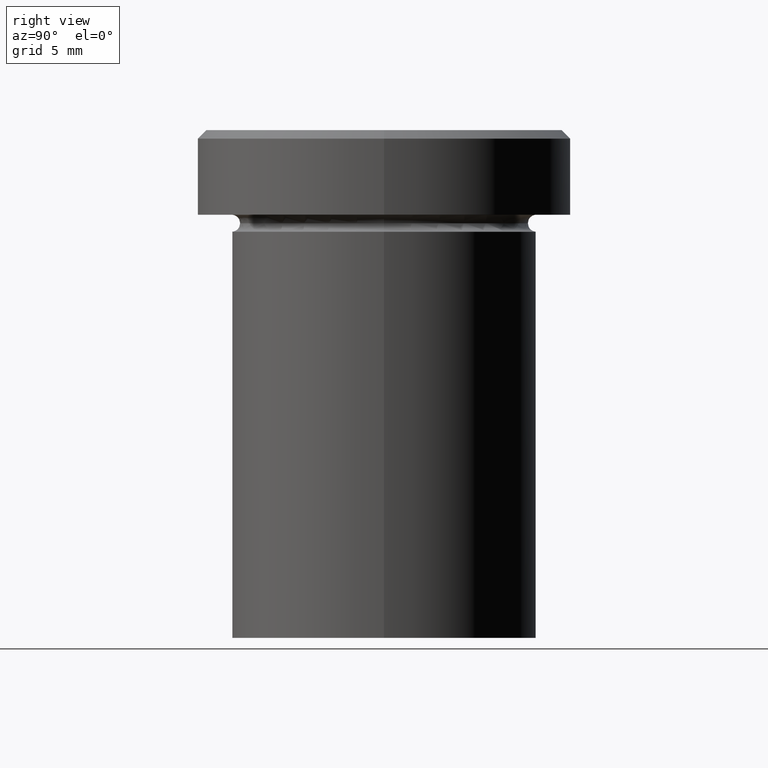
[diagram: clean part render]
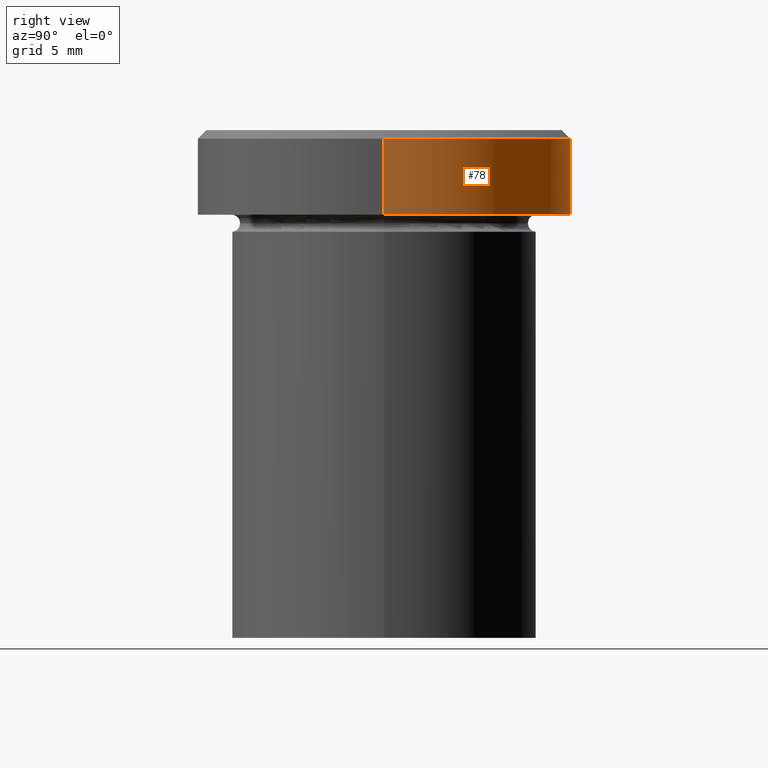
[diagram: same view with one face highlighted and labeled with its STEP entity id]
A machine part, right view. The second image highlights one B-rep face of the part: STEP entity #78.
In plain terms, the highlighted cylindrical surface (partial cylindrical patch) has radius 11 mm, axis along (-0, -0, 1).
Its self-contained STEP definition (entity closure, byte-faithful):
#15 = AXIS2_PLACEMENT_3D ( 'NONE', #238, #233, #207 ) ;
#23 = ORIENTED_EDGE ( 'NONE', *, *, #318, .T. ) ;
#52 = DIRECTION ( 'NONE',  ( -0.000000000000000000, -0.000000000000000000, 1.000000000000000000 ) ) ;
#70 = VERTEX_POINT ( 'NONE', #253 ) ;
#76 = CARTESIAN_POINT ( 'NONE',  ( -11.00000000000000000, 1.347111479062088405E-15, -0.5000000000000004441 ) ) ;
#78 = ADVANCED_FACE ( 'NONE', ( #383 ), #295, .T. ) ;
#102 = CIRCLE ( 'NONE', #341, 11.00000000000000000 ) ;
#110 = CIRCLE ( 'NONE', #15, 11.00000000000000000 ) ;
#119 = ORIENTED_EDGE ( 'NONE', *, *, #194, .T. ) ;
#132 = DIRECTION ( 'NONE',  ( -0.000000000000000000, -0.000000000000000000, 1.000000000000000000 ) ) ;
#136 = EDGE_LOOP ( 'NONE', ( #119, #141, #23, #138 ) ) ;
#138 = ORIENTED_EDGE ( 'NONE', *, *, #409, .F. ) ;
#141 = ORIENTED_EDGE ( 'NONE', *, *, #202, .T. ) ;
#145 = CARTESIAN_POINT ( 'NONE',  ( 11.00000000000000000, 0.000000000000000000, -5.000000000000000000 ) ) ;
#163 = DIRECTION ( 'NONE',  ( 1.000000000000000000, 0.000000000000000000, 0.000000000000000000 ) ) ;
#172 = CARTESIAN_POINT ( 'NONE',  ( -11.00000000000000000, 1.347111479062088405E-15, 0.000000000000000000 ) ) ;
#177 = LINE ( 'NONE', #172, #293 ) ;
#185 = AXIS2_PLACEMENT_3D ( 'NONE', #327, #132, #163 ) ;
#188 = VERTEX_POINT ( 'NONE', #76 ) ;
#194 = EDGE_CURVE ( 'NONE', #271, #335, #110, .T. ) ;
#202 = EDGE_CURVE ( 'NONE', #335, #188, #177, .T. ) ;
#207 = DIRECTION ( 'NONE',  ( 1.000000000000000000, 0.000000000000000000, 0.000000000000000000 ) ) ;
#217 = VECTOR ( 'NONE', #52, 1000.000000000000000 ) ;
#227 = CARTESIAN_POINT ( 'NONE',  ( 0.000000000000000000, 0.000000000000000000, -0.5000000000000004441 ) ) ;
#233 = DIRECTION ( 'NONE',  ( -0.000000000000000000, -0.000000000000000000, 1.000000000000000000 ) ) ;
#238 = CARTESIAN_POINT ( 'NONE',  ( 0.000000000000000000, 0.000000000000000000, -5.000000000000000000 ) ) ;
#253 = CARTESIAN_POINT ( 'NONE',  ( 11.00000000000000000, 0.000000000000000000, -0.5000000000000004441 ) ) ;
#271 = VERTEX_POINT ( 'NONE', #145 ) ;
#291 = LINE ( 'NONE', #338, #217 ) ;
#293 = VECTOR ( 'NONE', #402, 1000.000000000000000 ) ;
#295 = CYLINDRICAL_SURFACE ( 'NONE', #185, 11.00000000000000000 ) ;
#318 = EDGE_CURVE ( 'NONE', #188, #70, #102, .T. ) ;
#323 = CARTESIAN_POINT ( 'NONE',  ( -11.00000000000000000, 1.347111479062088405E-15, -5.000000000000000000 ) ) ;
#327 = CARTESIAN_POINT ( 'NONE',  ( 0.000000000000000000, 0.000000000000000000, 0.000000000000000000 ) ) ;
#335 = VERTEX_POINT ( 'NONE', #323 ) ;
#338 = CARTESIAN_POINT ( 'NONE',  ( 11.00000000000000000, 0.000000000000000000, 0.000000000000000000 ) ) ;
#341 = AXIS2_PLACEMENT_3D ( 'NONE', #227, #354, #387 ) ;
#354 = DIRECTION ( 'NONE',  ( 0.000000000000000000, 0.000000000000000000, -1.000000000000000000 ) ) ;
#383 = FACE_OUTER_BOUND ( 'NONE', #136, .T. ) ;
#387 = DIRECTION ( 'NONE',  ( 1.000000000000000000, 0.000000000000000000, 0.000000000000000000 ) ) ;
#402 = DIRECTION ( 'NONE',  ( -0.000000000000000000, -0.000000000000000000, 1.000000000000000000 ) ) ;
#409 = EDGE_CURVE ( 'NONE', #271, #70, #291, .T. ) ;